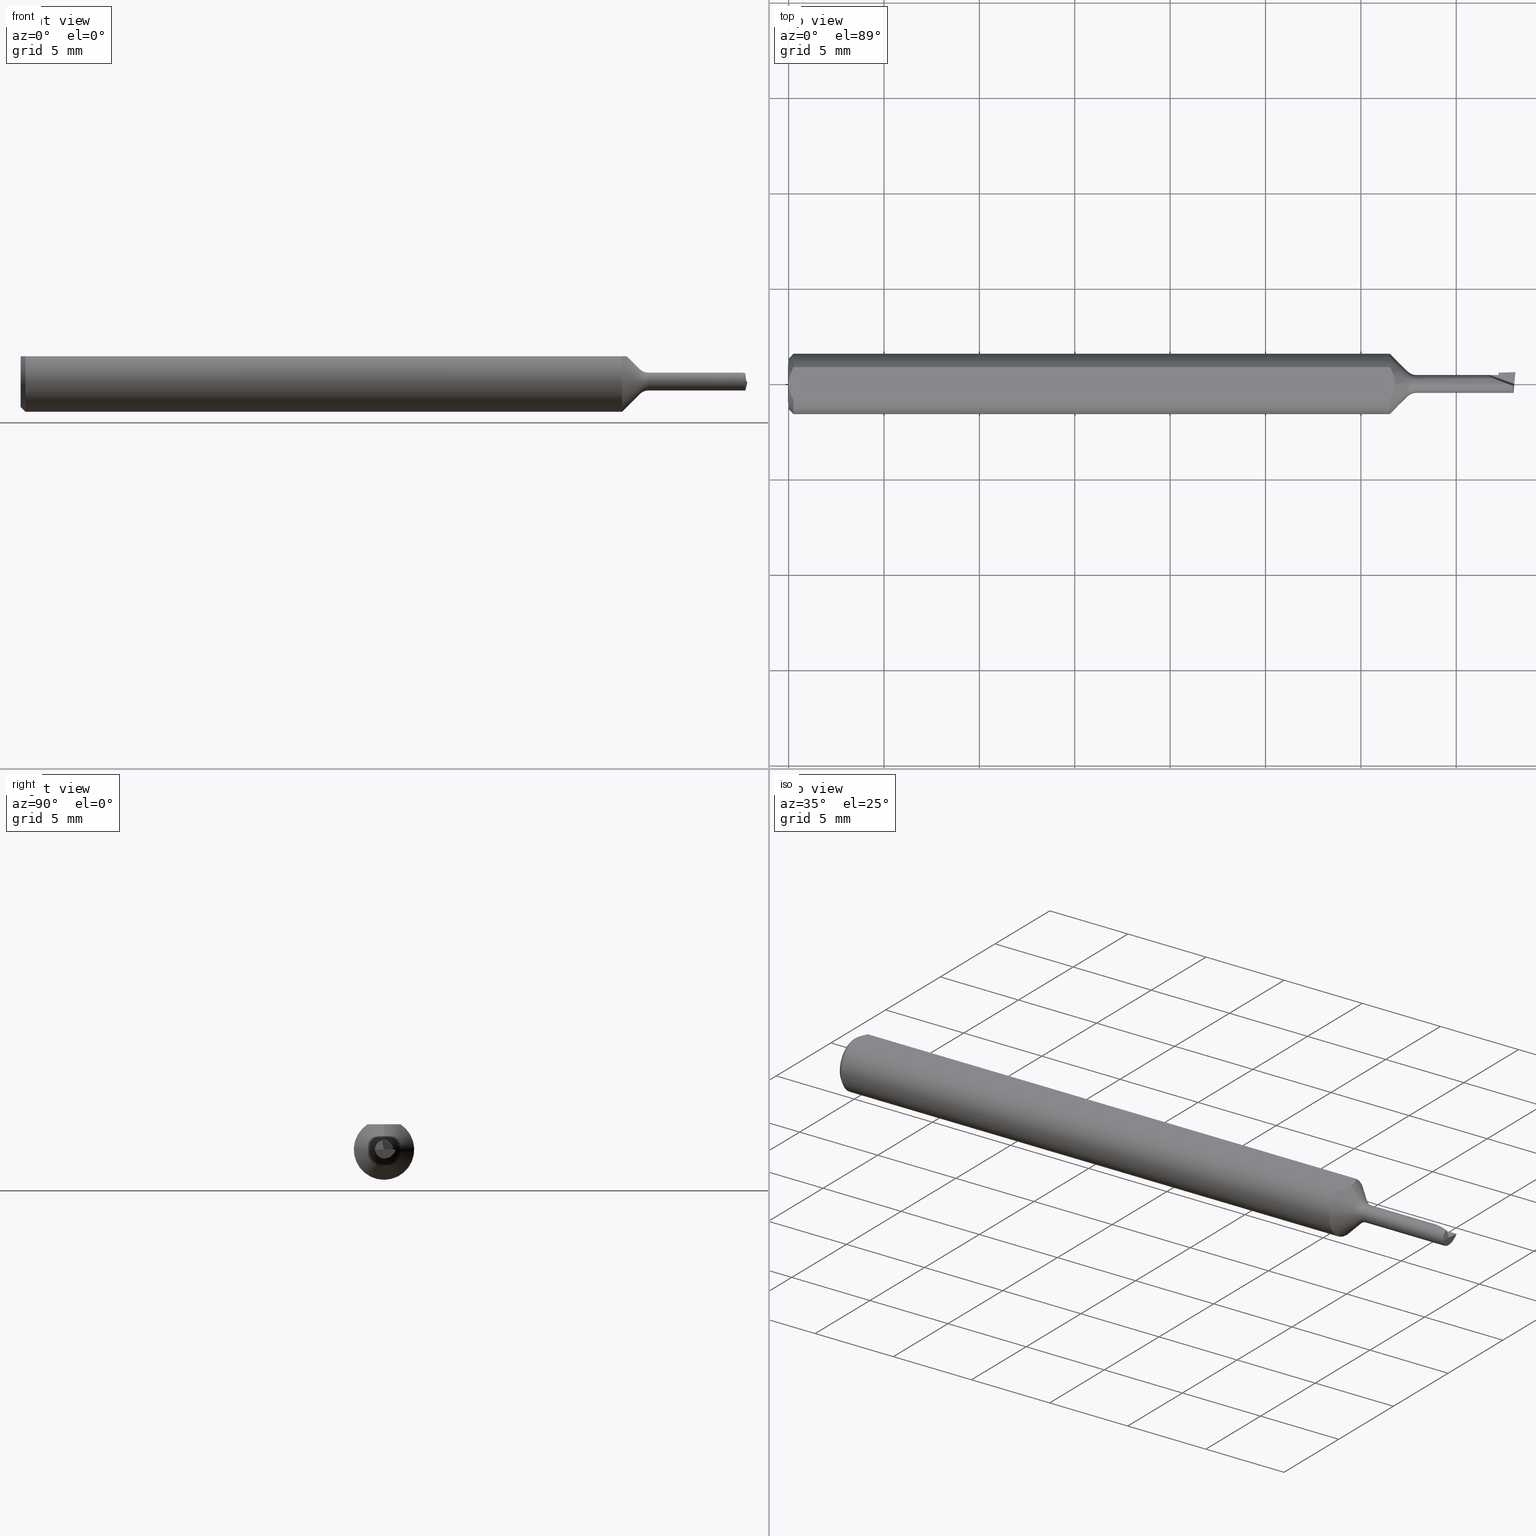
[diagram: canonical four-view strip — front | top / right | iso, engineering-drawing reading convention]
A machine part, canonical four-view strip (front | top / right | iso — engineering-drawing reading convention). The complete STEP part file that produces these views, byte-faithful:
ISO-10303-21;
HEADER;
FILE_DESCRIPTION (( 'STEP AP203' ),
    '1' );
FILE_NAME ('210049-MB045200.STEP',
    '2025-01-30T18:57:44',
    ( '' ),
    ( '' ),
    'SwSTEP 2.0',
    'SolidWorks 2024',
    '' );
FILE_SCHEMA (( 'CONFIG_CONTROL_DESIGN' ));
ENDSEC;

DATA;
#1 = ORIENTED_EDGE ( 'NONE', *, *, #316, .F. ) ;
#2 = DIRECTION ( 'NONE',  ( 0.000000000000000000, 0.000000000000000000, -1.000000000000000000 ) ) ;
#3 = B_SPLINE_CURVE_WITH_KNOTS ( 'NONE', 3,
 ( #346, #159, #496, #644, #546, #402 ),
 .UNSPECIFIED., .F., .F.,
 ( 4, 2, 4 ),
 ( 0.0009229516234078821539, 0.001371626545108044996, 0.001820301466808207621 ),
 .UNSPECIFIED. ) ;
#4 = VECTOR ( 'NONE', #440, 39.37007874015748143 ) ;
#5 = VERTEX_POINT ( 'NONE', #164 ) ;
#6 = CIRCLE ( 'NONE', #452, 0.01849999999999999908 ) ;
#7 = CARTESIAN_POINT ( 'NONE',  ( 0.000000000000000000, 0.000000000000000000, 0.000000000000000000 ) ) ;
#8 = CARTESIAN_POINT ( 'NONE',  ( 1.498722803693174566, 0.02118925606886698162, -0.006999999999999996676 ) ) ;
#9 = EDGE_CURVE ( 'NONE', #486, #575, #309, .T. ) ;
#10 = DIRECTION ( 'NONE',  ( 0.000000000000000000, 0.000000000000000000, 1.000000000000000000 ) ) ;
#11 = LINE ( 'NONE', #475, #447 ) ;
#12 = DIRECTION ( 'NONE',  ( 0.9993908270190960952, 0.03489949670248750080, -0.000000000000000000 ) ) ;
#13 = VECTOR ( 'NONE', #559, 39.37007874015748854 ) ;
#14 = LINE ( 'NONE', #371, #461 ) ;
#15 = AXIS2_PLACEMENT_3D ( 'NONE', #500, #550, #300 ) ;
#16 = VERTEX_POINT ( 'NONE', #394 ) ;
#17 = CARTESIAN_POINT ( 'NONE',  ( 1.465000000000000080, 0.02327777306778930702, -1.572938430745744944E-18 ) ) ;
#18 = CARTESIAN_POINT ( 'NONE',  ( 0.001055043921644571291, -0.01186408073217194367, 0.05235000000000002152 ) ) ;
#19 =( BOUNDED_CURVE ( )  B_SPLINE_CURVE ( 3, ( #320, #329, #315, #568 ),
 .UNSPECIFIED., .F., .F. ) 
 B_SPLINE_CURVE_WITH_KNOTS ( ( 4, 4 ),
 ( 5.466285219765468995, 5.728084607564618125 ),
 .UNSPECIFIED. ) 
 CURVE ( )  GEOMETRIC_REPRESENTATION_ITEM ( )  RATIONAL_B_SPLINE_CURVE ( ( 1.000000000000000000, 0.9942965742492069214, 0.9942965742492069214, 1.000000000000000000 ) ) 
 REPRESENTATION_ITEM ( '' )  );
#20 = CARTESIAN_POINT ( 'NONE',  ( 1.241150000000000198, -0.03386738844375220686, 0.05235000000000000070 ) ) ;
#21 = DIRECTION ( 'NONE',  ( -0.9864997997699066490, 0.08630754905045853742, 0.1391731009600517543 ) ) ;
#22 = EDGE_CURVE ( 'NONE', #16, #444, #281, .T. ) ;
#23 = PERSON_AND_ORGANIZATION_ROLE ( 'creator' ) ;
#24 = CARTESIAN_POINT ( 'NONE',  ( 1.295355339059327315, 2.265596578422605350E-18, -0.01850000000000001643 ) ) ;
#25 = CIRCLE ( 'NONE', #112, 0.02582233047033638193 ) ;
#26 = AXIS2_PLACEMENT_3D ( 'NONE', #406, #595, #55 ) ;
#27 = CARTESIAN_POINT ( 'NONE',  ( 1.491015288325890253, -0.002751962849509067850, 0.01834616788330073814 ) ) ;
#28 = DIRECTION ( 'NONE',  ( -1.000000000000000000, -0.000000000000000000, -0.000000000000000000 ) ) ;
#29 = EDGE_LOOP ( 'NONE', ( #190, #639, #449, #584 ) ) ;
#30 = EDGE_CURVE ( 'NONE', #339, #202, #154, .T. ) ;
#31 = CARTESIAN_POINT ( 'NONE',  ( 2.815371162439451627E-33, 0.01850000000000000602, -6.508939666095427711E-17 ) ) ;
#32 = EDGE_LOOP ( 'NONE', ( #375, #41, #441, #117 ) ) ;
#33 = CC_DESIGN_PERSON_AND_ORGANIZATION_ASSIGNMENT ( #450, #580, ( #615 ) ) ;
#34 = CARTESIAN_POINT ( 'NONE',  ( 1.560200597524541877, 0.004788152334396648772, -0.01786962778634774984 ) ) ;
#35 = ORIENTED_EDGE ( 'NONE', *, *, #240, .T. ) ;
#36 = AXIS2_PLACEMENT_3D ( 'NONE', #377, #630, #291 ) ;
#37 = PLANE ( 'NONE',  #169 ) ;
#38 = ORIENTED_EDGE ( 'NONE', *, *, #214, .T. ) ;
#39 = AXIS2_PLACEMENT_3D ( 'NONE', #561, #113, #466 ) ;
#40 = CARTESIAN_POINT ( 'NONE',  ( 1.465000000000000080, 0.01072789620067145060, -0.01627807821413169986 ) ) ;
#41 = ORIENTED_EDGE ( 'NONE', *, *, #269, .T. ) ;
#42 = ADVANCED_FACE ( 'NONE', ( #596 ), #464, .T. ) ;
#43 = DATE_TIME_ROLE ( 'creation_date' ) ;
#44 = CARTESIAN_POINT ( 'NONE',  ( 1.243992034642578348, 0.02863519109676606472, 0.05235000000000002152 ) ) ;
#45 = VERTEX_POINT ( 'NONE', #8 ) ;
#46 = APPLICATION_PROTOCOL_DEFINITION ( 'international standard', 'config_control_design', 1994, #641 ) ;
#47 = VECTOR ( 'NONE', #271, 39.37007874015748143 ) ;
#48 = AXIS2_PLACEMENT_3D ( 'NONE', #474, #609, #366 ) ;
#49 = DIRECTION ( 'NONE',  ( 0.000000000000000000, 0.000000000000000000, 1.000000000000000000 ) ) ;
#50 = VERTEX_POINT ( 'NONE', #74 ) ;
#51 = PERSON_AND_ORGANIZATION_ROLE ( 'classification_officer' ) ;
#52 = EDGE_CURVE ( 'NONE', #539, #483, #151, .T. ) ;
#53 = CARTESIAN_POINT ( 'NONE',  ( 1.495246590703220857, 2.265596578422604194E-18, -0.01850000000000000602 ) ) ;
#54 = ORIENTED_EDGE ( 'NONE', *, *, #547, .F. ) ;
#55 = DIRECTION ( 'NONE',  ( 0.000000000000000000, -1.224646799147353207E-16, 1.000000000000000000 ) ) ;
#56 = ORIENTED_EDGE ( 'NONE', *, *, #645, .F. ) ;
#57 = CYLINDRICAL_SURFACE ( 'NONE', #39, 0.01850000000000000602 ) ;
#58 = CIRCLE ( 'NONE', #448, 0.01850000000000001296 ) ;
#59 = ORIENTED_EDGE ( 'NONE', *, *, #557, .F. ) ;
#60 = APPROVAL_DATE_TIME ( #398, #237 ) ;
#61 = CARTESIAN_POINT ( 'NONE',  ( 1.483333815684383605, 0.000000000000000000, 0.01850000000000000602 ) ) ;
#62 = DIRECTION ( 'NONE',  ( -1.000000000000000000, -0.000000000000000000, -0.000000000000000000 ) ) ;
#63 = DATE_TIME_ROLE ( 'classification_date' ) ;
#64 = CARTESIAN_POINT ( 'NONE',  ( 1.241150000000000198, 0.000000000000000000, 0.000000000000000000 ) ) ;
#65 = CARTESIAN_POINT ( 'NONE',  ( 1.497591963102740786, 0.01621548884024824957, -0.01193127157655284563 ) ) ;
#66 = ORIENTED_EDGE ( 'NONE', *, *, #298, .T. ) ;
#67 = CARTESIAN_POINT ( 'NONE',  ( 1.453559267999332549, 0.01083704909609771970, 0.01850000000000004072 ) ) ;
#68 = VECTOR ( 'NONE', #397, 39.37007874015748143 ) ;
#69 = FACE_OUTER_BOUND ( 'NONE', #259, .T. ) ;
#70 = EDGE_LOOP ( 'NONE', ( #551, #537, #460, #86, #59, #490 ) ) ;
#71 = ADVANCED_FACE ( 'NONE', ( #367 ), #616, .T. ) ;
#72 = DIRECTION ( 'NONE',  ( -1.000000000000000000, -0.000000000000000000, -0.000000000000000000 ) ) ;
#73 = CC_DESIGN_APPROVAL ( #237, ( #622 ) ) ;
#74 = CARTESIAN_POINT ( 'NONE',  ( 1.241150000000000198, 0.03386738844375220686, 0.05235000000000000070 ) ) ;
#75 = VERTEX_POINT ( 'NONE', #225 ) ;
#76 = CARTESIAN_POINT ( 'NONE',  ( 1.465000000000000080, 0.004788152334396648772, -0.01786962778634774984 ) ) ;
#77 = ORIENTED_EDGE ( 'NONE', *, *, #81, .F. ) ;
#78 = PERSON_AND_ORGANIZATION ( #433, #84 ) ;
#79 = DIRECTION ( 'NONE',  ( 0.000000000000000000, 0.000000000000000000, 1.000000000000000000 ) ) ;
#80 = VERTEX_POINT ( 'NONE', #606 ) ;
#81 = EDGE_CURVE ( 'NONE', #575, #454, #322, .T. ) ;
#82 = VECTOR ( 'NONE', #357, 39.37007874015748143 ) ;
#83 = COORDINATED_UNIVERSAL_TIME_OFFSET ( 8, 0, .BEHIND. ) ;
#84 = ORGANIZATION ( 'UNSPECIFIED', 'UNSPECIFIED', '' ) ;
#85 = CARTESIAN_POINT ( 'NONE',  ( 1.494952902551172302, -0.004097954674002866546, 0.01804042038007480295 ) ) ;
#86 = ORIENTED_EDGE ( 'NONE', *, *, #214, .F. ) ;
#87 = FACE_OUTER_BOUND ( 'NONE', #497, .T. ) ;
#88 = EDGE_LOOP ( 'NONE', ( #111, #629, #332, #635, #127 ) ) ;
#89 = EDGE_CURVE ( 'NONE', #483, #539, #25, .T. ) ;
#90 = CARTESIAN_POINT ( 'NONE',  ( 1.498845433956495388, 0.02150713782118080994, -0.006327893575437196390 ) ) ;
#91 = EDGE_LOOP ( 'NONE', ( #347, #432 ) ) ;
#92 = AXIS2_PLACEMENT_3D ( 'NONE', #518, #418, #425 ) ;
#93 = EDGE_CURVE ( 'NONE', #444, #16, #302, .T. ) ;
#94 = LINE ( 'NONE', #294, #104 ) ;
#95 = ORIENTED_EDGE ( 'NONE', *, *, #115, .F. ) ;
#96 = PRODUCT_DEFINITION_FORMATION_WITH_SPECIFIED_SOURCE ( 'ANY', '', #615, .NOT_KNOWN. ) ;
#97 = PERSON_AND_ORGANIZATION ( #433, #84 ) ;
#98 = LINE ( 'NONE', #249, #141 ) ;
#99 = EDGE_LOOP ( 'NONE', ( #438, #358, #295, #355, #604 ) ) ;
#100 = CARTESIAN_POINT ( 'NONE',  ( 0.000000000000000000, 0.000000000000000000, 0.000000000000000000 ) ) ;
#101 = ORIENTED_EDGE ( 'NONE', *, *, #115, .T. ) ;
#102 = ADVANCED_FACE ( 'NONE', ( #522 ), #179, .F. ) ;
#103 = APPROVAL_ROLE ( '' ) ;
#104 = VECTOR ( 'NONE', #492, 39.37007874015748854 ) ;
#105 = LINE ( 'NONE', #305, #383 ) ;
#106 = VERTEX_POINT ( 'NONE', #610 ) ;
#107 = AXIS2_PLACEMENT_3D ( 'NONE', #381, #499, #528 ) ;
#108 = DIRECTION ( 'NONE',  ( -0.000000000000000000, 0.9659258262890682012, 0.2588190451025212946 ) ) ;
#109 = EDGE_LOOP ( 'NONE', ( #387, #35, #532 ) ) ;
#110 = CARTESIAN_POINT ( 'NONE',  ( 1.241150000000000198, -0.03386738844375220686, 0.05235000000000000070 ) ) ;
#111 = ORIENTED_EDGE ( 'NONE', *, *, #148, .T. ) ;
#112 = AXIS2_PLACEMENT_3D ( 'NONE', #477, #571, #131 ) ;
#113 = DIRECTION ( 'NONE',  ( -1.000000000000000000, -0.000000000000000000, -0.000000000000000000 ) ) ;
#114 = AXIS2_PLACEMENT_3D ( 'NONE', #212, #153, #207 ) ;
#115 = EDGE_CURVE ( 'NONE', #199, #365, #19, .T. ) ;
#116 = DIRECTION ( 'NONE',  ( 0.1396943646708924958, 0.000000000000000000, -0.9901946699913082295 ) ) ;
#117 = ORIENTED_EDGE ( 'NONE', *, *, #465, .F. ) ;
#118 = CARTESIAN_POINT ( 'NONE',  ( 1.465000000000000080, 0.000000000000000000, 0.000000000000000000 ) ) ;
#119 = LINE ( 'NONE', #65, #47 ) ;
#120 = ORIENTED_EDGE ( 'NONE', *, *, #619, .T. ) ;
#121 = LINE ( 'NONE', #310, #194 ) ;
#122 = CARTESIAN_POINT ( 'NONE',  ( -1.070637973615595603E-15, -0.005965286321711177862, 0.05235000000000002152 ) ) ;
#123 = ADVANCED_FACE ( 'NONE', ( #69 ), #363, .F. ) ;
#124 = DIRECTION ( 'NONE',  ( 0.000000000000000000, 0.000000000000000000, 1.000000000000000000 ) ) ;
#125 = CIRCLE ( 'NONE', #501, 0.02499999999999999098 ) ;
#126 = LINE ( 'NONE', #360, #533 ) ;
#127 = ORIENTED_EDGE ( 'NONE', *, *, #204, .F. ) ;
#128 = CC_DESIGN_DATE_AND_TIME_ASSIGNMENT ( #168, #63, ( #622 ) ) ;
#129 = CALENDAR_DATE ( 2025, 30, 1 ) ;
#130 = CC_DESIGN_APPROVAL ( #493, ( #623 ) ) ;
#131 = DIRECTION ( 'NONE',  ( 0.000000000000000000, 0.000000000000000000, 1.000000000000000000 ) ) ;
#132 = ORIENTED_EDGE ( 'NONE', *, *, #148, .F. ) ;
#133 = CALENDAR_DATE ( 2025, 30, 1 ) ;
#134 = EDGE_CURVE ( 'NONE', #539, #80, #11, .T. ) ;
#135 = CARTESIAN_POINT ( 'NONE',  ( 1.465000000000000080, 0.01850000000000000602, -6.508939666095427711E-17 ) ) ;
#136 = VERTEX_POINT ( 'NONE', #167 ) ;
#137 = APPLICATION_PROTOCOL_DEFINITION ( 'international standard', 'config_control_design', 1994, #251 ) ;
#138 = DIRECTION ( 'NONE',  ( -1.000000000000000000, -0.000000000000000000, -0.000000000000000000 ) ) ;
#139 = CLOSED_SHELL ( 'NONE', ( #510, #187, #565, #42, #422, #627, #197, #388, #489, #601, #637, #400, #370, #280, #233, #123, #102, #71, #288 ) ) ;
#140 = EDGE_LOOP ( 'NONE', ( #423, #132, #504, #56 ) ) ;
#141 = VECTOR ( 'NONE', #396, 39.37007874015748143 ) ;
#142 =( BOUNDED_CURVE ( )  B_SPLINE_CURVE ( 3, ( #53, #456, #598, #354 ),
 .UNSPECIFIED., .F., .F. ) 
 B_SPLINE_CURVE_WITH_KNOTS ( ( 4, 4 ),
 ( 5.728084607564618125, 7.298880934359528894 ),
 .UNSPECIFIED. ) 
 CURVE ( )  GEOMETRIC_REPRESENTATION_ITEM ( )  RATIONAL_B_SPLINE_CURVE ( ( 1.000000000000000000, 0.8047378541243617178, 0.8047378541243617178, 1.000000000000000000 ) ) 
 REPRESENTATION_ITEM ( '' )  );
#143 = COORDINATED_UNIVERSAL_TIME_OFFSET ( 8, 0, .BEHIND. ) ;
#144 = DIRECTION ( 'NONE',  ( 0.000000000000000000, 0.000000000000000000, -1.000000000000000000 ) ) ;
#145 = ORIENTED_EDGE ( 'NONE', *, *, #30, .T. ) ;
#146 = DIRECTION ( 'NONE',  ( 0.000000000000000000, 0.9659258262890682012, 0.2588190451025212391 ) ) ;
#147 = VERTEX_POINT ( 'NONE', #228 ) ;
#148 = EDGE_CURVE ( 'NONE', #5, #202, #126, .T. ) ;
#149 = FACE_OUTER_BOUND ( 'NONE', #70, .T. ) ;
#150 = ORIENTED_EDGE ( 'NONE', *, *, #328, .T. ) ;
#151 = CIRCLE ( 'NONE', #323, 0.02582233047033638193 ) ;
#152 = AXIS2_PLACEMENT_3D ( 'NONE', #531, #28, #198 ) ;
#153 = DIRECTION ( 'NONE',  ( -1.000000000000000000, -0.000000000000000000, -0.000000000000000000 ) ) ;
#154 = LINE ( 'NONE', #208, #68 ) ;
#155 = PERSON_AND_ORGANIZATION ( #433, #84 ) ;
#156 = PLANE ( 'NONE',  #15 ) ;
#157 = EDGE_CURVE ( 'NONE', #45, #75, #119, .T. ) ;
#158 = ORIENTED_EDGE ( 'NONE', *, *, #498, .T. ) ;
#159 = CARTESIAN_POINT ( 'NONE',  ( 0.007185421074056205608, 0.02868573718286560742, 0.05235000000000002152 ) ) ;
#160 = CARTESIAN_POINT ( 'NONE',  ( 1.465000000000000080, 0.02242357863109861044, -0.001830709982111567661 ) ) ;
#161 = FACE_OUTER_BOUND ( 'NONE', #545, .T. ) ;
#162 = VERTEX_POINT ( 'NONE', #76 ) ;
#163 = CARTESIAN_POINT ( 'NONE',  ( 0.000000000000000000, 0.000000000000000000, 0.05235000000000033377 ) ) ;
#164 = CARTESIAN_POINT ( 'NONE',  ( 1.446998957439701083, 0.01849999999999999908, -4.483286445232968331E-18 ) ) ;
#165 = EDGE_CURVE ( 'NONE', #202, #401, #14, .T. ) ;
#166 = FACE_OUTER_BOUND ( 'NONE', #582, .T. ) ;
#167 = CARTESIAN_POINT ( 'NONE',  ( 0.009999999999999890921, 0.03386738844375217911, 0.05235000000000001458 ) ) ;
#168 = DATE_AND_TIME ( #312, #274 ) ;
#169 = AXIS2_PLACEMENT_3D ( 'NONE', #34, #235, #146 ) ;
#170 = LINE ( 'NONE', #564, #427 ) ;
#171 = VECTOR ( 'NONE', #605, 39.37007874015748143 ) ;
#172 = DIRECTION ( 'NONE',  ( 0.000000000000000000, 0.000000000000000000, 1.000000000000000000 ) ) ;
#173 = EDGE_LOOP ( 'NONE', ( #566, #414, #408, #617 ) ) ;
#174 = LOCAL_TIME ( 10, 57, 44.00000000000000000, #373 ) ;
#175 = FACE_OUTER_BOUND ( 'NONE', #29, .T. ) ;
#176 = DIRECTION ( 'NONE',  ( -1.000000000000000000, -0.000000000000000000, -0.000000000000000000 ) ) ;
#177 = EDGE_CURVE ( 'NONE', #444, #633, #560, .T. ) ;
#178 = DIRECTION ( 'NONE',  ( -1.000000000000000000, -0.000000000000000000, -0.000000000000000000 ) ) ;
#179 = PLANE ( 'NONE',  #471 ) ;
#180 = CARTESIAN_POINT ( 'NONE',  ( 1.277677669529663662, 3.162323435702261239E-18, -0.02582233047033637499 ) ) ;
#181 = DIRECTION ( 'NONE',  ( 0.000000000000000000, -0.7073221891495888869, -0.7068913075831623205 ) ) ;
#182 = ORIENTED_EDGE ( 'NONE', *, *, #222, .T. ) ;
#183 = APPROVAL_STATUS ( 'not_yet_approved' ) ;
#184 = LOCAL_TIME ( 10, 57, 44.00000000000000000, #304 ) ;
#185 = DIRECTION ( 'NONE',  ( 0.000000000000000000, -1.000000000000000000, 0.000000000000000000 ) ) ;
#186 = ORIENTED_EDGE ( 'NONE', *, *, #165, .T. ) ;
#187 = ADVANCED_FACE ( 'NONE', ( #87 ), #523, .T. ) ;
#188 =( NAMED_UNIT ( * ) PLANE_ANGLE_UNIT ( ) SI_UNIT ( $, .RADIAN. ) );
#189 = CARTESIAN_POINT ( 'NONE',  ( 1.500000000000000222, 0.02450000000000000094, -1.067128122525102820E-18 ) ) ;
#190 = ORIENTED_EDGE ( 'NONE', *, *, #22, .F. ) ;
#191 = LINE ( 'NONE', #31, #4 ) ;
#192 = AXIS2_PLACEMENT_3D ( 'NONE', #238, #144, #586 ) ;
#193 = ORIENTED_EDGE ( 'NONE', *, *, #540, .T. ) ;
#194 = VECTOR ( 'NONE', #567, 39.37007874015748143 ) ;
#195 = CARTESIAN_POINT ( 'NONE',  ( 1.496237987468385322, -0.01849999999999996439, 2.732599657287118718E-16 ) ) ;
#196 = VERTEX_POINT ( 'NONE', #24 ) ;
#197 = ADVANCED_FACE ( 'NONE', ( #334 ), #588, .F. ) ;
#198 = DIRECTION ( 'NONE',  ( 0.000000000000000000, 0.000000000000000000, 1.000000000000000000 ) ) ;
#199 = VERTEX_POINT ( 'NONE', #286 ) ;
#200 = CC_DESIGN_PERSON_AND_ORGANIZATION_ASSIGNMENT ( #577, #216, ( #96 ) ) ;
#201 = CARTESIAN_POINT ( 'NONE',  ( 1.251150000000000206, 0.005920815533600993531, 0.05235000000000002152 ) ) ;
#202 = VERTEX_POINT ( 'NONE', #429 ) ;
#203 =( CONVERSION_BASED_UNIT ( 'INCH', #299 ) LENGTH_UNIT ( ) NAMED_UNIT ( #380 ) );
#204 = EDGE_CURVE ( 'NONE', #5, #245, #191, .T. ) ;
#205 = FACE_OUTER_BOUND ( 'NONE', #554, .T. ) ;
#206 = DIRECTION ( 'NONE',  ( 0.000000000000000000, 0.000000000000000000, -1.000000000000000000 ) ) ;
#207 = DIRECTION ( 'NONE',  ( 0.000000000000000000, 0.000000000000000000, 1.000000000000000000 ) ) ;
#208 = CARTESIAN_POINT ( 'NONE',  ( 1.497856527743614885, 5.157748590581906026E-34, -4.482061838879143203E-18 ) ) ;
#209 = MANIFOLD_SOLID_BREP ( 'Cut-Extrude8', #139 ) ;
#210 = CARTESIAN_POINT ( 'NONE',  ( 1.295355339059327315, 0.000000000000000000, 0.000000000000000000 ) ) ;
#211 = ORIENTED_EDGE ( 'NONE', *, *, #376, .T. ) ;
#212 = CARTESIAN_POINT ( 'NONE',  ( 1.295355339059327315, 0.000000000000000000, 0.000000000000000000 ) ) ;
#213 = ORIENTED_EDGE ( 'NONE', *, *, #473, .T. ) ;
#214 = EDGE_CURVE ( 'NONE', #589, #633, #279, .T. ) ;
#215 = APPROVAL_PERSON_ORGANIZATION ( #78, #468, #636 ) ;
#216 = PERSON_AND_ORGANIZATION_ROLE ( 'design_supplier' ) ;
#217 = FACE_OUTER_BOUND ( 'NONE', #173, .T. ) ;
#218 = CARTESIAN_POINT ( 'NONE',  ( 1.491155917282976695, 0.03518992960932577213, 0.06931876481191029393 ) ) ;
#219 = CARTESIAN_POINT ( 'NONE',  ( 1.251150000000000206, -1.477725056715825224E-21, 0.05235000000000001458 ) ) ;
#220 = DIRECTION ( 'NONE',  ( 0.9396926207859126468, -0.3420201433256568335, -0.000000000000000000 ) ) ;
#221 = VECTOR ( 'NONE', #435, 39.37007874015747433 ) ;
#222 = EDGE_CURVE ( 'NONE', #483, #530, #125, .T. ) ;
#223 = CARTESIAN_POINT ( 'NONE',  ( 0.000000000000000000, 0.000000000000000000, -0.05235000000000033377 ) ) ;
#224 = CIRCLE ( 'NONE', #26, 0.02499999999999999098 ) ;
#225 = CARTESIAN_POINT ( 'NONE',  ( 1.496688055231696124, 0.01223983799721654366, -0.01587295463074458318 ) ) ;
#226 = DIRECTION ( 'NONE',  ( 0.000000000000000000, 0.000000000000000000, 1.000000000000000000 ) ) ;
#227 = DIRECTION ( 'NONE',  ( 0.000000000000000000, 0.000000000000000000, 1.000000000000000000 ) ) ;
#228 = CARTESIAN_POINT ( 'NONE',  ( 0.009999999999999887451, 0.000000000000000000, -0.06235000000000000264 ) ) ;
#229 =( NAMED_UNIT ( * ) SI_UNIT ( $, .STERADIAN. ) SOLID_ANGLE_UNIT ( ) );
#230 = AXIS2_PLACEMENT_3D ( 'NONE', #389, #625, #482 ) ;
#231 = VECTOR ( 'NONE', #459, 39.37007874015748143 ) ;
#232 = DIRECTION ( 'NONE',  ( 0.1201445221440180927, 0.9589290576775757469, 0.2569442666034444378 ) ) ;
#233 = ADVANCED_FACE ( 'NONE', ( #583 ), #374, .F. ) ;
#234 = CARTESIAN_POINT ( 'NONE',  ( 1.487126106453287244, -0.001380280959563398363, 0.01850000000000000949 ) ) ;
#235 = DIRECTION ( 'NONE',  ( 0.000000000000000000, 0.2588190451025212391, -0.9659258262890682012 ) ) ;
#236 = ORIENTED_EDGE ( 'NONE', *, *, #576, .T. ) ;
#237 = APPROVAL ( #356, 'UNSPECIFIED' ) ;
#238 = CARTESIAN_POINT ( 'NONE',  ( 1.500000000000000222, 0.06235000000000000264, 0.05235000000000001458 ) ) ;
#239 = ORIENTED_EDGE ( 'NONE', *, *, #585, .F. ) ;
#240 = EDGE_CURVE ( 'NONE', #106, #401, #317, .T. ) ;
#241 = PLANE ( 'NONE',  #192 ) ;
#242 = EDGE_LOOP ( 'NONE', ( #101, #390, #385, #301, #236, #569, #378, #247 ) ) ;
#243 = VECTOR ( 'NONE', #72, 39.37007874015748143 ) ;
#244 = LINE ( 'NONE', #90, #221 ) ;
#245 = VERTEX_POINT ( 'NONE', #135 ) ;
#246 = CARTESIAN_POINT ( 'NONE',  ( 1.277677669529663662, 0.000000000000000000, 0.02582233047033637499 ) ) ;
#247 = ORIENTED_EDGE ( 'NONE', *, *, #269, .F. ) ;
#248 = CALENDAR_DATE ( 2025, 30, 1 ) ;
#249 = CARTESIAN_POINT ( 'NONE',  ( 1.277677669529663662, 0.000000000000000000, 0.02582233047033638193 ) ) ;
#250 = ORIENTED_EDGE ( 'NONE', *, *, #134, .F. ) ;
#251 = APPLICATION_CONTEXT ( 'configuration controlled 3d designs of mechanical parts and assemblies' ) ;
#252 = VECTOR ( 'NONE', #232, 39.37007874015748854 ) ;
#253 = AXIS2_PLACEMENT_3D ( 'NONE', #628, #342, #79 ) ;
#254 = DIRECTION ( 'NONE',  ( 0.000000000000000000, 0.000000000000000000, -1.000000000000000000 ) ) ;
#255 = CARTESIAN_POINT ( 'NONE',  ( 1.246488788636946898, 0.02320328458619740422, 0.05235000000000002152 ) ) ;
#256 = EDGE_LOOP ( 'NONE', ( #213, #349, #265, #556 ) ) ;
#257 = CALENDAR_DATE ( 2025, 30, 1 ) ;
#258 = DIRECTION ( 'NONE',  ( 0.000000000000000000, 1.000000000000000000, 1.150753554054429375E-16 ) ) ;
#259 = EDGE_LOOP ( 'NONE', ( #643, #527, #494, #77 ) ) ;
#260 = CARTESIAN_POINT ( 'NONE',  ( 1.559665859629950191, 0.01524471709213553669, -0.01506779970390787100 ) ) ;
#261 = EDGE_CURVE ( 'NONE', #147, #136, #618, .T. ) ;
#262 = ORIENTED_EDGE ( 'NONE', *, *, #451, .F. ) ;
#263 = AXIS2_PLACEMENT_3D ( 'NONE', #592, #297, #206 ) ;
#264 = LINE ( 'NONE', #223, #590 ) ;
#265 = ORIENTED_EDGE ( 'NONE', *, *, #607, .F. ) ;
#266 = CARTESIAN_POINT ( 'NONE',  ( 0.000000000000000000, 0.000000000000000000, 0.01850000000000000602 ) ) ;
#267 = DIRECTION ( 'NONE',  ( 0.1396943646708782849, 0.000000000000000000, 0.9901946699913101169 ) ) ;
#268 = PERSON_AND_ORGANIZATION ( #433, #84 ) ;
#269 = EDGE_CURVE ( 'NONE', #199, #162, #487, .T. ) ;
#270 = CARTESIAN_POINT ( 'NONE',  ( 1.295355339059327315, 0.000000000000000000, 0.01850000000000001296 ) ) ;
#271 = DIRECTION ( 'NONE',  ( -0.1593925713349118589, -0.7010550863643484343, -0.6950653020299035756 ) ) ;
#272 = AXIS2_PLACEMENT_3D ( 'NONE', #64, #521, #10 ) ;
#273 = CARTESIAN_POINT ( 'NONE',  ( 0.000000000000000000, 0.000000000000000000, 0.05235000000000033377 ) ) ;
#274 = LOCAL_TIME ( 10, 57, 44.00000000000000000, #505 ) ;
#275 = DIRECTION ( 'NONE',  ( -0.1550261498412155714, -0.2183092626835797800, 0.9634873941531153507 ) ) ;
#276 = B_SPLINE_CURVE_WITH_KNOTS ( 'NONE', 3,
 ( #552, #44, #255, #634, #201, #392 ),
 .UNSPECIFIED., .F., .F.,
 ( 4, 2, 4 ),
 ( 0.002018861167849298529, 0.002467762199066077071, 0.002916663230282855179 ),
 .UNSPECIFIED. ) ;
#277 = DIRECTION ( 'NONE',  ( 0.9864997997699033183, -0.08630754905047478831, 0.1391731009600657154 ) ) ;
#278 = MECHANICAL_CONTEXT ( 'NONE', #641, 'mechanical' ) ;
#279 = LINE ( 'NONE', #578, #405 ) ;
#280 = ADVANCED_FACE ( 'NONE', ( #384 ), #37, .T. ) ;
#281 = CIRCLE ( 'NONE', #263, 0.05235000000000033377 ) ;
#282 = CIRCLE ( 'NONE', #152, 0.01850000000000001296 ) ;
#283 = CARTESIAN_POINT ( 'NONE',  ( 1.460024366919236094, 0.02310402013190050036, -1.572938430745744944E-18 ) ) ;
#284 = ORIENTED_EDGE ( 'NONE', *, *, #540, .F. ) ;
#285 = CARTESIAN_POINT ( 'NONE',  ( 0.01000000000000840841, -0.03386738844395137393, 0.05235000000000001458 ) ) ;
#286 = CARTESIAN_POINT ( 'NONE',  ( 1.495754431199804557, 0.004788152334396648772, -0.01786962778634774984 ) ) ;
#287 = ORIENTED_EDGE ( 'NONE', *, *, #376, .F. ) ;
#288 = ADVANCED_FACE ( 'NONE', ( #149 ), #241, .F. ) ;
#289 = CARTESIAN_POINT ( 'NONE',  ( 1.494465960141844851, -0.01288082332125570564, 0.01604535613734157928 ) ) ;
#290 = ORIENTED_EDGE ( 'NONE', *, *, #645, .T. ) ;
#291 = DIRECTION ( 'NONE',  ( 0.000000000000000000, 0.000000000000000000, -1.000000000000000000 ) ) ;
#292 = ORIENTED_EDGE ( 'NONE', *, *, #411, .F. ) ;
#293 = VECTOR ( 'NONE', #12, 39.37007874015748854 ) ;
#294 = CARTESIAN_POINT ( 'NONE',  ( 0.7984117945685827999, 3.886970232290855934E-33, -3.377760788655366709E-17 ) ) ;
#295 = ORIENTED_EDGE ( 'NONE', *, *, #442, .F. ) ;
#296 = CARTESIAN_POINT ( 'NONE',  ( 1.496237987468385322, -0.01849999999999996439, 2.732599657287118718E-16 ) ) ;
#297 = DIRECTION ( 'NONE',  ( -1.000000000000000000, -0.000000000000000000, -0.000000000000000000 ) ) ;
#298 = EDGE_CURVE ( 'NONE', #633, #147, #511, .T. ) ;
#299 = LENGTH_MEASURE_WITH_UNIT ( LENGTH_MEASURE( 0.02539999999999999897 ), #624 );
#300 = DIRECTION ( 'NONE',  ( 0.9396926207859126468, -0.3420201433256567780, 0.000000000000000000 ) ) ;
#301 = ORIENTED_EDGE ( 'NONE', *, *, #619, .F. ) ;
#302 = CIRCLE ( 'NONE', #92, 0.05235000000000033377 ) ;
#303 = AXIS2_PLACEMENT_3D ( 'NONE', #100, #506, #2 ) ;
#304 = COORDINATED_UNIVERSAL_TIME_OFFSET ( 8, 0, .BEHIND. ) ;
#305 = CARTESIAN_POINT ( 'NONE',  ( 1.465000000000000080, 0.02204888731940269492, -0.01324462778634774400 ) ) ;
#306 = ORIENTED_EDGE ( 'NONE', *, *, #430, .F. ) ;
#307 = EDGE_CURVE ( 'NONE', #199, #75, #340, .T. ) ;
#308 = DIRECTION ( 'NONE',  ( 4.188400406518391045E-17, 1.150753554054429375E-16, -1.000000000000000000 ) ) ;
#309 = LINE ( 'NONE', #160, #13 ) ;
#310 = CARTESIAN_POINT ( 'NONE',  ( 0.000000000000000000, 0.03386738844375220686, 0.05235000000000000070 ) ) ;
#311 = ORIENTED_EDGE ( 'NONE', *, *, #134, .T. ) ;
#312 = CALENDAR_DATE ( 2025, 30, 1 ) ;
#313 = AXIS2_PLACEMENT_3D ( 'NONE', #321, #514, #420 ) ;
#314 = DIRECTION ( 'NONE',  ( -1.000000000000000000, -0.000000000000000000, -0.000000000000000000 ) ) ;
#315 = CARTESIAN_POINT ( 'NONE',  ( 1.495388239854692269, 0.001619057209963974077, -0.01850000000000000255 ) ) ;
#316 = EDGE_CURVE ( 'NONE', #339, #45, #244, .T. ) ;
#317 =( BOUNDED_CURVE ( )  B_SPLINE_CURVE ( 3, ( #85, #289, #479, #195 ),
 .UNSPECIFIED., .F., .F. ) 
 B_SPLINE_CURVE_WITH_KNOTS ( ( 4, 4 ),
 ( 5.951448363857583246, 7.298880934359464945 ),
 .UNSPECIFIED. ) 
 CURVE ( )  GEOMETRIC_REPRESENTATION_ITEM ( )  RATIONAL_B_SPLINE_CURVE ( ( 1.000000000000000000, 0.8543389983611022753, 0.8543389983611022753, 1.000000000000000000 ) ) 
 REPRESENTATION_ITEM ( '' )  );
#318 = ADVANCED_BREP_SHAPE_REPRESENTATION ( '210049-MB045200', ( #209, #107 ), #574 ) ;
#319 = CARTESIAN_POINT ( 'NONE',  ( 0.000000000000000000, 2.265596578422604194E-18, -0.01850000000000000602 ) ) ;
#320 = CARTESIAN_POINT ( 'NONE',  ( 1.495754431199804557, 0.004788152334396648772, -0.01786962778634774984 ) ) ;
#321 = CARTESIAN_POINT ( 'NONE',  ( 0.000000000000000000, 0.000000000000000000, 0.000000000000000000 ) ) ;
#322 = LINE ( 'NONE', #369, #572 ) ;
#323 = AXIS2_PLACEMENT_3D ( 'NONE', #413, #176, #172 ) ;
#324 = CARTESIAN_POINT ( 'NONE',  ( 1.483333815684383605, 0.000000000000000000, 0.01850000000000000602 ) ) ;
#325 = DIRECTION ( 'NONE',  ( 0.02467767077832642292, -0.7066760308408334135, 0.7071067811865490160 ) ) ;
#326 = EDGE_LOOP ( 'NONE', ( #239, #631, #594, #290, #120, #306 ) ) ;
#327 = APPROVAL_PERSON_ORGANIZATION ( #268, #237, #103 ) ;
#328 = EDGE_CURVE ( 'NONE', #530, #196, #282, .T. ) ;
#329 = CARTESIAN_POINT ( 'NONE',  ( 1.495558491035186899, 0.003224263161052952874, -0.01828867062739698499 ) ) ;
#330 = PERSON_AND_ORGANIZATION ( #433, #84 ) ;
#331 = DIRECTION ( 'NONE',  ( 1.000000000000000000, 0.000000000000000000, 0.000000000000000000 ) ) ;
#332 = ORIENTED_EDGE ( 'NONE', *, *, #473, .F. ) ;
#333 = DIRECTION ( 'NONE',  ( 1.000000000000000000, 0.000000000000000000, 0.000000000000000000 ) ) ;
#334 = FACE_OUTER_BOUND ( 'NONE', #99, .T. ) ;
#335 = ORIENTED_EDGE ( 'NONE', *, *, #89, .F. ) ;
#336 = EDGE_CURVE ( 'NONE', #80, #589, #416, .T. ) ;
#337 = CARTESIAN_POINT ( 'NONE',  ( 1.494952902551172302, -0.004097954674002866546, 0.01804042038007480295 ) ) ;
#338 = DIRECTION ( 'NONE',  ( 0.03162968562512429027, -0.9057556888204039147, 0.4226182617407007736 ) ) ;
#339 = VERTEX_POINT ( 'NONE', #189 ) ;
#340 = LINE ( 'NONE', #541, #252 ) ;
#341 = ORIENTED_EDGE ( 'NONE', *, *, #261, .F. ) ;
#342 = DIRECTION ( 'NONE',  ( -1.000000000000000000, -0.000000000000000000, -0.000000000000000000 ) ) ;
#343 = AXIS2_PLACEMENT_3D ( 'NONE', #431, #331, #538 ) ;
#344 = ORIENTED_EDGE ( 'NONE', *, *, #391, .F. ) ;
#345 = EDGE_CURVE ( 'NONE', #245, #486, #443, .T. ) ;
#346 = CARTESIAN_POINT ( 'NONE',  ( 0.009999999999999890921, 0.03386738844375217911, 0.05235000000000001458 ) ) ;
#347 = ORIENTED_EDGE ( 'NONE', *, *, #93, .T. ) ;
#348 = CC_DESIGN_PERSON_AND_ORGANIZATION_ASSIGNMENT ( #155, #549, ( #96 ) ) ;
#349 = ORIENTED_EDGE ( 'NONE', *, *, #316, .T. ) ;
#350 = SHAPE_DEFINITION_REPRESENTATION ( #379, #318 ) ;
#351 = DIRECTION ( 'NONE',  ( -1.000000000000000000, -0.000000000000000000, -0.000000000000000000 ) ) ;
#352 = ORIENTED_EDGE ( 'NONE', *, *, #307, .T. ) ;
#353 = EDGE_CURVE ( 'NONE', #50, #436, #276, .T. ) ;
#354 = CARTESIAN_POINT ( 'NONE',  ( 1.496237987468385322, -0.01849999999999996439, 2.732599657287118718E-16 ) ) ;
#355 = ORIENTED_EDGE ( 'NONE', *, *, #613, .F. ) ;
#356 = APPROVAL_STATUS ( 'not_yet_approved' ) ;
#357 = DIRECTION ( 'NONE',  ( -0.000000000000000000, 1.000000000000000000, 1.150753554054429375E-16 ) ) ;
#358 = ORIENTED_EDGE ( 'NONE', *, *, #81, .T. ) ;
#359 = CARTESIAN_POINT ( 'NONE',  ( 1.460138284237282980, 0.01984185495899845955, -0.006999999999999996676 ) ) ;
#360 = CARTESIAN_POINT ( 'NONE',  ( 1.405776579097274936, 0.03350371870230225285, -4.483286445232968331E-18 ) ) ;
#361 = AXIS2_PLACEMENT_3D ( 'NONE', #218, #277, #116 ) ;
#362 = CONICAL_SURFACE ( 'NONE', #303, 0.05235000000000033377, 0.7853981633974376209 ) ;
#363 = PLANE ( 'NONE',  #543 ) ;
#364 = LOCAL_TIME ( 10, 57, 44.00000000000000000, #143 ) ;
#365 = VERTEX_POINT ( 'NONE', #591 ) ;
#366 = DIRECTION ( 'NONE',  ( 0.000000000000000000, 0.000000000000000000, 1.000000000000000000 ) ) ;
#367 = FACE_OUTER_BOUND ( 'NONE', #109, .T. ) ;
#368 = CARTESIAN_POINT ( 'NONE',  ( 1.446998957439701083, 0.01849999999999999908, -4.483286445232968331E-18 ) ) ;
#369 = CARTESIAN_POINT ( 'NONE',  ( 1.465000000000000080, 0.02275535369517672074, -0.004257947521761099377 ) ) ;
#370 = ADVANCED_FACE ( 'NONE', ( #642 ), #453, .F. ) ;
#371 = CARTESIAN_POINT ( 'NONE',  ( 1.500296196177055563, 0.02788553779562383261, 3.414809992080329023E-16 ) ) ;
#372 = CC_DESIGN_PERSON_AND_ORGANIZATION_ASSIGNMENT ( #503, #51, ( #622 ) ) ;
#373 = COORDINATED_UNIVERSAL_TIME_OFFSET ( 8, 0, .BEHIND. ) ;
#374 = PLANE ( 'NONE',  #415 ) ;
#375 = ORIENTED_EDGE ( 'NONE', *, *, #307, .F. ) ;
#376 = EDGE_CURVE ( 'NONE', #483, #436, #98, .T. ) ;
#377 = CARTESIAN_POINT ( 'NONE',  ( 1.465000000000000080, 0.01849999999999999908, 0.000000000000000000 ) ) ;
#378 = ORIENTED_EDGE ( 'NONE', *, *, #613, .T. ) ;
#379 = PRODUCT_DEFINITION_SHAPE ( 'NONE', 'NONE',  #623 ) ;
#380 = DIMENSIONAL_EXPONENTS ( 1.000000000000000000, 0.000000000000000000, 0.000000000000000000, 0.000000000000000000, 0.000000000000000000, 0.000000000000000000, 0.000000000000000000 ) ;
#381 = CARTESIAN_POINT ( 'NONE',  ( 0.000000000000000000, 0.000000000000000000, 0.000000000000000000 ) ) ;
#382 = AXIS2_PLACEMENT_3D ( 'NONE', #525, #62, #573 ) ;
#383 = VECTOR ( 'NONE', #108, 39.37007874015747433 ) ;
#384 = FACE_OUTER_BOUND ( 'NONE', #32, .T. ) ;
#385 = ORIENTED_EDGE ( 'NONE', *, *, #328, .F. ) ;
#386 = CARTESIAN_POINT ( 'NONE',  ( 1.560200597524541877, 0.004788152334396648772, -0.01786962778634774984 ) ) ;
#387 = ORIENTED_EDGE ( 'NONE', *, *, #519, .T. ) ;
#388 = ADVANCED_FACE ( 'NONE', ( #205 ), #563, .F. ) ;
#389 = CARTESIAN_POINT ( 'NONE',  ( 0.009999999999999887451, 0.000000000000000000, 0.000000000000000000 ) ) ;
#390 = ORIENTED_EDGE ( 'NONE', *, *, #585, .T. ) ;
#391 = EDGE_CURVE ( 'NONE', #539, #196, #224, .T. ) ;
#392 = CARTESIAN_POINT ( 'NONE',  ( 1.251150000000000206, -1.477725056715825224E-21, 0.05235000000000001458 ) ) ;
#393 = TOROIDAL_SURFACE ( 'NONE', #480, 0.04350000000000000394, 0.02499999999999999098 ) ;
#394 = CARTESIAN_POINT ( 'NONE',  ( 0.000000000000000000, 0.000000000000000000, -0.05235000000000033377 ) ) ;
#395 = DATE_AND_TIME ( #248, #174 ) ;
#396 = DIRECTION ( 'NONE',  ( -0.7071067811865459074, 0.000000000000000000, 0.7071067811865491270 ) ) ;
#397 = DIRECTION ( 'NONE',  ( -0.08715574274766034468, -0.9961946980917453232, -1.182878904194726503E-16 ) ) ;
#398 = DATE_AND_TIME ( #257, #184 ) ;
#399 = CARTESIAN_POINT ( 'NONE',  ( 1.465000000000000080, 0.01849999999999999908, -3.729330705459841584E-18 ) ) ;
#400 = ADVANCED_FACE ( 'NONE', ( #161 ), #362, .T. ) ;
#401 = VERTEX_POINT ( 'NONE', #296 ) ;
#402 = CARTESIAN_POINT ( 'NONE',  ( 0.000000000000000000, 0.000000000000000000, 0.05235000000000033377 ) ) ;
#403 = ORIENTED_EDGE ( 'NONE', *, *, #353, .T. ) ;
#404 = PRODUCT_RELATED_PRODUCT_CATEGORY ( 'detail', '', ( #615 ) ) ;
#405 = VECTOR ( 'NONE', #437, 39.37007874015748143 ) ;
#406 = CARTESIAN_POINT ( 'NONE',  ( 1.295355339059327315, 5.327213576290986981E-18, -0.04350000000000000394 ) ) ;
#407 = CC_DESIGN_APPROVAL ( #468, ( #96 ) ) ;
#408 = ORIENTED_EDGE ( 'NONE', *, *, #430, .T. ) ;
#409 = CARTESIAN_POINT ( 'NONE',  ( 1.465000000000000080, 0.02001162981448263017, -0.006999999999999996676 ) ) ;
#410 = CARTESIAN_POINT ( 'NONE',  ( 1.495443673491787084, 0.02831007852008726039, -0.03465938240595495962 ) ) ;
#411 = EDGE_CURVE ( 'NONE', #136, #444, #3, .T. ) ;
#412 = CARTESIAN_POINT ( 'NONE',  ( 1.244001488371463182, -0.02861778674340263035, 0.05235000000000002152 ) ) ;
#413 = CARTESIAN_POINT ( 'NONE',  ( 1.277677669529663662, 0.000000000000000000, 0.000000000000000000 ) ) ;
#414 = ORIENTED_EDGE ( 'NONE', *, *, #391, .T. ) ;
#415 = AXIS2_PLACEMENT_3D ( 'NONE', #283, #338, #536 ) ;
#416 = CIRCLE ( 'NONE', #253, 0.06235000000000000264 ) ;
#417 = CARTESIAN_POINT ( 'NONE',  ( 1.295355339059327315, 0.000000000000000000, 0.000000000000000000 ) ) ;
#418 = DIRECTION ( 'NONE',  ( -1.000000000000000000, -0.000000000000000000, -0.000000000000000000 ) ) ;
#419 = LOCAL_TIME ( 10, 57, 44.00000000000000000, #83 ) ;
#420 = DIRECTION ( 'NONE',  ( 0.000000000000000000, 0.000000000000000000, -1.000000000000000000 ) ) ;
#421 = CARTESIAN_POINT ( 'NONE',  ( 0.007163450771416182694, -0.02864528976632487248, 0.05235000000000001458 ) ) ;
#422 = ADVANCED_FACE ( 'NONE', ( #638 ), #156, .F. ) ;
#423 = ORIENTED_EDGE ( 'NONE', *, *, #519, .F. ) ;
#424 = FACE_OUTER_BOUND ( 'NONE', #488, .T. ) ;
#425 = DIRECTION ( 'NONE',  ( 0.000000000000000000, 0.000000000000000000, -1.000000000000000000 ) ) ;
#426 = VECTOR ( 'NONE', #485, 39.37007874015748143 ) ;
#427 = VECTOR ( 'NONE', #275, 39.37007874015748143 ) ;
#428 = APPROVAL_DATE_TIME ( #620, #493 ) ;
#429 = CARTESIAN_POINT ( 'NONE',  ( 1.497855625440970062, -1.031336641983672081E-05, 2.387862265685893356E-16 ) ) ;
#430 = EDGE_CURVE ( 'NONE', #196, #530, #58, .T. ) ;
#431 = CARTESIAN_POINT ( 'NONE',  ( 0.009999999999999887451, 0.000000000000000000, 0.000000000000000000 ) ) ;
#432 = ORIENTED_EDGE ( 'NONE', *, *, #22, .T. ) ;
#433 = PERSON ( 'UNSPECIFIED', 'UNSPECIFIED', 'UNSPECIFIED', ('UNSPECIFIED'), ('UNSPECIFIED'), ('UNSPECIFIED') ) ;
#434 = FACE_OUTER_BOUND ( 'NONE', #91, .T. ) ;
#435 = DIRECTION ( 'NONE',  ( -0.1627401076574647720, -0.4218543546513220388, -0.8919386530593645945 ) ) ;
#436 = VERTEX_POINT ( 'NONE', #603 ) ;
#437 = DIRECTION ( 'NONE',  ( -1.000000000000000000, -0.000000000000000000, -0.000000000000000000 ) ) ;
#438 = ORIENTED_EDGE ( 'NONE', *, *, #9, .T. ) ;
#439 = AXIS2_PLACEMENT_3D ( 'NONE', #445, #333, #254 ) ;
#440 = DIRECTION ( 'NONE',  ( 1.000000000000000000, 0.000000000000000000, 0.000000000000000000 ) ) ;
#441 = ORIENTED_EDGE ( 'NONE', *, *, #442, .T. ) ;
#442 = EDGE_CURVE ( 'NONE', #162, #454, #105, .T. ) ;
#443 = LINE ( 'NONE', #399, #82 ) ;
#444 = VERTEX_POINT ( 'NONE', #163 ) ;
#445 = CARTESIAN_POINT ( 'NONE',  ( 0.000000000000000000, 0.000000000000000000, 0.000000000000000000 ) ) ;
#446 = CARTESIAN_POINT ( 'NONE',  ( 1.418295385203593328, 0.06789885579794455173, -9.160938846980685724E-22 ) ) ;
#447 = VECTOR ( 'NONE', #529, 39.37007874015748143 ) ;
#448 = AXIS2_PLACEMENT_3D ( 'NONE', #210, #351, #49 ) ;
#449 = ORIENTED_EDGE ( 'NONE', *, *, #298, .F. ) ;
#450 = PERSON_AND_ORGANIZATION ( #433, #84 ) ;
#451 = EDGE_CURVE ( 'NONE', #365, #401, #142, .T. ) ;
#452 = AXIS2_PLACEMENT_3D ( 'NONE', #118, #509, #124 ) ;
#453 = PLANE ( 'NONE',  #534 ) ;
#454 = VERTEX_POINT ( 'NONE', #40 ) ;
#455 = CC_DESIGN_PERSON_AND_ORGANIZATION_ASSIGNMENT ( #97, #23, ( #623 ) ) ;
#456 = CARTESIAN_POINT ( 'NONE',  ( 1.494298471761238201, -0.01083704909609784980, -0.01850000000000001643 ) ) ;
#457 = ORIENTED_EDGE ( 'NONE', *, *, #89, .T. ) ;
#458 = UNCERTAINTY_MEASURE_WITH_UNIT (LENGTH_MEASURE( 1.000000000000000082E-05 ), #203, 'distance_accuracy_value', 'NONE');
#459 = DIRECTION ( 'NONE',  ( -0.9987822236179720869, -0.04765519936432637688, -0.01276917218481542736 ) ) ;
#460 = ORIENTED_EDGE ( 'NONE', *, *, #177, .T. ) ;
#461 = VECTOR ( 'NONE', #562, 39.37007874015748854 ) ;
#462 = CARTESIAN_POINT ( 'NONE',  ( 1.438508876927481195, 0.01850000000000001643, 0.01083704909609776827 ) ) ;
#463 = AXIS2_PLACEMENT_3D ( 'NONE', #7, #314, #227 ) ;
#464 = CYLINDRICAL_SURFACE ( 'NONE', #382, 0.01850000000000000602 ) ;
#465 = EDGE_CURVE ( 'NONE', #75, #454, #555, .T. ) ;
#466 = DIRECTION ( 'NONE',  ( 0.000000000000000000, 0.000000000000000000, 1.000000000000000000 ) ) ;
#467 = CARTESIAN_POINT ( 'NONE',  ( 1.460138284237282980, 0.01984185495899845955, -0.006999999999999996676 ) ) ;
#468 = APPROVAL ( #183, 'UNSPECIFIED' ) ;
#469 = LINE ( 'NONE', #359, #293 ) ;
#470 = CARTESIAN_POINT ( 'NONE',  ( 0.004679365186825695105, -0.02325953974091124477, 0.05235000000000000764 ) ) ;
#471 = AXIS2_PLACEMENT_3D ( 'NONE', #410, #21, #267 ) ;
#472 = CONICAL_SURFACE ( 'NONE', #48, 0.02582233047033638193, 0.7853981633974506105 ) ;
#473 = EDGE_CURVE ( 'NONE', #486, #339, #94, .T. ) ;
#474 = CARTESIAN_POINT ( 'NONE',  ( 1.277677669529663662, 0.000000000000000000, 0.000000000000000000 ) ) ;
#475 = CARTESIAN_POINT ( 'NONE',  ( 1.277677669529663662, 3.162323435702262010E-18, -0.02582233047033638193 ) ) ;
#476 = FACE_OUTER_BOUND ( 'NONE', #326, .T. ) ;
#477 = CARTESIAN_POINT ( 'NONE',  ( 1.277677669529663662, 0.000000000000000000, 0.000000000000000000 ) ) ;
#478 =( BOUNDED_CURVE ( )  B_SPLINE_CURVE ( 3, ( #337, #27, #234, #484 ),
 .UNSPECIFIED., .F., .F. ) 
 B_SPLINE_CURVE_WITH_KNOTS ( ( 4, 4 ),
 ( 4.766799014753298813, 4.990162771046300350 ),
 .UNSPECIFIED. ) 
 CURVE ( )  GEOMETRIC_REPRESENTATION_ITEM ( )  RATIONAL_B_SPLINE_CURVE ( ( 1.000000000000000000, 0.9958467056734143785, 0.9958467056734143785, 1.000000000000000000 ) ) 
 REPRESENTATION_ITEM ( '' )  );
#479 = CARTESIAN_POINT ( 'NONE',  ( 1.494967355536287013, -0.01849999999999990541, 0.009006612182587492646 ) ) ;
#480 = AXIS2_PLACEMENT_3D ( 'NONE', #417, #178, #226 ) ;
#481 = PLANE ( 'NONE',  #439 ) ;
#482 = DIRECTION ( 'NONE',  ( 0.000000000000000000, 0.000000000000000000, -1.000000000000000000 ) ) ;
#483 = VERTEX_POINT ( 'NONE', #246 ) ;
#484 = CARTESIAN_POINT ( 'NONE',  ( 1.483333815684383605, 0.000000000000000000, 0.01850000000000000602 ) ) ;
#485 = DIRECTION ( 'NONE',  ( -1.000000000000000000, 0.000000000000000000, 0.000000000000000000 ) ) ;
#486 = VERTEX_POINT ( 'NONE', #17 ) ;
#487 = LINE ( 'NONE', #386, #426 ) ;
#488 = EDGE_LOOP ( 'NONE', ( #250, #600, #211, #548, #542 ) ) ;
#489 = ADVANCED_FACE ( 'NONE', ( #424 ), #472, .T. ) ;
#490 = ORIENTED_EDGE ( 'NONE', *, *, #353, .F. ) ;
#491 = APPROVAL_PERSON_ORGANIZATION ( #330, #493, #640 ) ;
#492 = DIRECTION ( 'NONE',  ( 0.9993908270190957621, 0.03489949670250171165, 4.587456144808678678E-17 ) ) ;
#493 = APPROVAL ( #535, 'UNSPECIFIED' ) ;
#494 = ORIENTED_EDGE ( 'NONE', *, *, #465, .T. ) ;
#495 = DATE_AND_TIME ( #133, #364 ) ;
#496 = CARTESIAN_POINT ( 'NONE',  ( 0.004671770759546769666, 0.02323517832780105236, 0.05235000000000002152 ) ) ;
#497 = EDGE_LOOP ( 'NONE', ( #457, #311, #284, #403, #287 ) ) ;
#498 = EDGE_CURVE ( 'NONE', #136, #50, #121, .T. ) ;
#499 = DIRECTION ( 'NONE',  ( 0.000000000000000000, 0.000000000000000000, 1.000000000000000000 ) ) ;
#500 = CARTESIAN_POINT ( 'NONE',  ( 1.405776579097274936, 0.03350371870230225285, -4.483286445232968331E-18 ) ) ;
#501 = AXIS2_PLACEMENT_3D ( 'NONE', #632, #185, #581 ) ;
#502 = ORIENTED_EDGE ( 'NONE', *, *, #336, .T. ) ;
#503 = PERSON_AND_ORGANIZATION ( #433, #84 ) ;
#504 = ORIENTED_EDGE ( 'NONE', *, *, #576, .F. ) ;
#505 = COORDINATED_UNIVERSAL_TIME_OFFSET ( 8, 0, .BEHIND. ) ;
#506 = DIRECTION ( 'NONE',  ( 1.000000000000000000, 0.000000000000000000, 0.000000000000000000 ) ) ;
#507 = EDGE_LOOP ( 'NONE', ( #145, #186, #262, #95, #352, #579, #1 ) ) ;
#508 = DESIGN_CONTEXT ( 'detailed design', #251, 'design' ) ;
#509 = DIRECTION ( 'NONE',  ( -1.000000000000000000, -0.000000000000000000, -0.000000000000000000 ) ) ;
#510 = ADVANCED_FACE ( 'NONE', ( #175 ), #553, .T. ) ;
#511 = CIRCLE ( 'NONE', #230, 0.06235000000000000264 ) ;
#512 = VERTEX_POINT ( 'NONE', #324 ) ;
#513 = CIRCLE ( 'NONE', #272, 0.06235000000000000264 ) ;
#514 = DIRECTION ( 'NONE',  ( 1.000000000000000000, 0.000000000000000000, 0.000000000000000000 ) ) ;
#515 = DIRECTION ( 'NONE',  ( 0.000000000000000000, -0.7073221891495888869, -0.7068913075831623205 ) ) ;
#516 = CC_DESIGN_DATE_AND_TIME_ASSIGNMENT ( #495, #43, ( #623 ) ) ;
#517 = CARTESIAN_POINT ( 'NONE',  ( 1.250078879331740112, -0.01191647624495715922, 0.05235000000000002152 ) ) ;
#518 = CARTESIAN_POINT ( 'NONE',  ( 0.000000000000000000, 0.000000000000000000, 0.000000000000000000 ) ) ;
#519 = EDGE_CURVE ( 'NONE', #202, #106, #170, .T. ) ;
#520 = B_SPLINE_CURVE_WITH_KNOTS ( 'NONE', 3,
 ( #219, #611, #517, #614, #412, #20 ),
 .UNSPECIFIED., .F., .F.,
 ( 4, 2, 4 ),
 ( 0.002916663230282855179, 0.003365861382119312694, 0.003815059533955770209 ),
 .UNSPECIFIED. ) ;
#521 = DIRECTION ( 'NONE',  ( -1.000000000000000000, -0.000000000000000000, -0.000000000000000000 ) ) ;
#522 = FACE_OUTER_BOUND ( 'NONE', #507, .T. ) ;
#523 = CONICAL_SURFACE ( 'NONE', #599, 0.02582233047033638193, 0.7853981633974506105 ) ;
#524 = LINE ( 'NONE', #266, #243 ) ;
#525 = CARTESIAN_POINT ( 'NONE',  ( 0.000000000000000000, 0.000000000000000000, 0.000000000000000000 ) ) ;
#526 = CC_DESIGN_SECURITY_CLASSIFICATION ( #622, ( #96 ) ) ;
#527 = ORIENTED_EDGE ( 'NONE', *, *, #157, .T. ) ;
#528 = DIRECTION ( 'NONE',  ( 1.000000000000000000, 0.000000000000000000, 0.000000000000000000 ) ) ;
#529 = DIRECTION ( 'NONE',  ( -0.7071067811865459074, 8.659560562354952580E-17, -0.7071067811865491270 ) ) ;
#530 = VERTEX_POINT ( 'NONE', #270 ) ;
#531 = CARTESIAN_POINT ( 'NONE',  ( 1.295355339059327315, 0.000000000000000000, 0.000000000000000000 ) ) ;
#532 = ORIENTED_EDGE ( 'NONE', *, *, #165, .F. ) ;
#533 = VECTOR ( 'NONE', #220, 39.37007874015748854 ) ;
#534 = AXIS2_PLACEMENT_3D ( 'NONE', #446, #308, #258 ) ;
#535 = APPROVAL_STATUS ( 'not_yet_approved' ) ;
#536 = DIRECTION ( 'NONE',  ( 0.000000000000000000, -0.4228298219691071225, -0.9062091048171900809 ) ) ;
#537 = ORIENTED_EDGE ( 'NONE', *, *, #411, .T. ) ;
#538 = DIRECTION ( 'NONE',  ( 0.000000000000000000, 0.000000000000000000, -1.000000000000000000 ) ) ;
#539 = VERTEX_POINT ( 'NONE', #180 ) ;
#540 = EDGE_CURVE ( 'NONE', #50, #80, #513, .T. ) ;
#541 = CARTESIAN_POINT ( 'NONE',  ( 1.496684692676496731, 0.01221299988732022293, -0.01588014588061767429 ) ) ;
#542 = ORIENTED_EDGE ( 'NONE', *, *, #336, .F. ) ;
#543 = AXIS2_PLACEMENT_3D ( 'NONE', #467, #325, #515 ) ;
#544 = DIRECTION ( 'NONE',  ( 0.000000000000000000, 0.000000000000000000, 1.000000000000000000 ) ) ;
#545 = EDGE_LOOP ( 'NONE', ( #54, #587, #292, #341 ) ) ;
#546 = CARTESIAN_POINT ( 'NONE',  ( -1.099542139246802830E-15, 0.005954997531773979953, 0.05235000000000002152 ) ) ;
#547 = EDGE_CURVE ( 'NONE', #16, #147, #264, .T. ) ;
#548 = ORIENTED_EDGE ( 'NONE', *, *, #557, .T. ) ;
#549 = PERSON_AND_ORGANIZATION_ROLE ( 'creator' ) ;
#550 = DIRECTION ( 'NONE',  ( -0.3303660895493409355, -0.9076733711903737234, -0.2588190451025175753 ) ) ;
#551 = ORIENTED_EDGE ( 'NONE', *, *, #498, .F. ) ;
#552 = CARTESIAN_POINT ( 'NONE',  ( 1.241150000000000198, 0.03386738844375220686, 0.05235000000000000070 ) ) ;
#553 = CONICAL_SURFACE ( 'NONE', #313, 0.05235000000000033377, 0.7853981633974376209 ) ;
#554 = EDGE_LOOP ( 'NONE', ( #344, #335, #182, #150 ) ) ;
#555 = LINE ( 'NONE', #260, #231 ) ;
#556 = ORIENTED_EDGE ( 'NONE', *, *, #9, .F. ) ;
#557 = EDGE_CURVE ( 'NONE', #436, #589, #520, .T. ) ;
#558 = DIRECTION ( 'NONE',  ( 0.7071067811865550112, 0.000000000000000000, -0.7071067811865400232 ) ) ;
#559 = DIRECTION ( 'NONE',  ( 0.000000000000000000, -0.4228298219691071225, -0.9062091048171900809 ) ) ;
#560 = B_SPLINE_CURVE_WITH_KNOTS ( 'NONE', 3,
 ( #273, #122, #18, #470, #421, #612 ),
 .UNSPECIFIED., .F., .F.,
 ( 4, 2, 4 ),
 ( 0.001820301466808207621, 0.002269751589840481119, 0.002719201712872754834 ),
 .UNSPECIFIED. ) ;
#561 = CARTESIAN_POINT ( 'NONE',  ( 0.000000000000000000, 0.000000000000000000, 0.000000000000000000 ) ) ;
#562 = DIRECTION ( 'NONE',  ( -0.08715574274765613971, -0.9961946980917456562, -1.465142694903730263E-15 ) ) ;
#563 = TOROIDAL_SURFACE ( 'NONE', #114, 0.04350000000000000394, 0.02499999999999999098 ) ;
#564 = CARTESIAN_POINT ( 'NONE',  ( 1.496776916841381366, -0.001529360825625118410, 0.006704173061983520650 ) ) ;
#565 = ADVANCED_FACE ( 'NONE', ( #217 ), #393, .F. ) ;
#566 = ORIENTED_EDGE ( 'NONE', *, *, #52, .F. ) ;
#567 = DIRECTION ( 'NONE',  ( 1.000000000000000000, 0.000000000000000000, 0.000000000000000000 ) ) ;
#568 = CARTESIAN_POINT ( 'NONE',  ( 1.495246590703220857, 2.265596578422604194E-18, -0.01850000000000000602 ) ) ;
#569 = ORIENTED_EDGE ( 'NONE', *, *, #204, .T. ) ;
#570 = CYLINDRICAL_SURFACE ( 'NONE', #463, 0.06235000000000000264 ) ;
#571 = DIRECTION ( 'NONE',  ( -1.000000000000000000, -0.000000000000000000, -0.000000000000000000 ) ) ;
#572 = VECTOR ( 'NONE', #181, 39.37007874015748854 ) ;
#573 = DIRECTION ( 'NONE',  ( 0.000000000000000000, 0.000000000000000000, 1.000000000000000000 ) ) ;
#574 =( GEOMETRIC_REPRESENTATION_CONTEXT ( 3 ) GLOBAL_UNCERTAINTY_ASSIGNED_CONTEXT ( ( #458 ) ) GLOBAL_UNIT_ASSIGNED_CONTEXT ( ( #203, #188, #229 ) ) REPRESENTATION_CONTEXT ( 'NONE', 'WORKASPACE' ) );
#575 = VERTEX_POINT ( 'NONE', #409 ) ;
#576 = EDGE_CURVE ( 'NONE', #512, #5, #597, .T. ) ;
#577 = PERSON_AND_ORGANIZATION ( #433, #84 ) ;
#578 = CARTESIAN_POINT ( 'NONE',  ( 0.000000000000000000, -0.03386738844375220686, 0.05235000000000000070 ) ) ;
#579 = ORIENTED_EDGE ( 'NONE', *, *, #157, .F. ) ;
#580 = PERSON_AND_ORGANIZATION_ROLE ( 'design_owner' ) ;
#581 = DIRECTION ( 'NONE',  ( 0.000000000000000000, 0.000000000000000000, -1.000000000000000000 ) ) ;
#582 = EDGE_LOOP ( 'NONE', ( #193, #502, #38, #66, #626, #158 ) ) ;
#583 = FACE_OUTER_BOUND ( 'NONE', #256, .T. ) ;
#584 = ORIENTED_EDGE ( 'NONE', *, *, #177, .F. ) ;
#585 = EDGE_CURVE ( 'NONE', #365, #196, #608, .T. ) ;
#586 = DIRECTION ( 'NONE',  ( -1.000000000000000000, 0.000000000000000000, -0.000000000000000000 ) ) ;
#587 = ORIENTED_EDGE ( 'NONE', *, *, #93, .F. ) ;
#588 = PLANE ( 'NONE',  #36 ) ;
#589 = VERTEX_POINT ( 'NONE', #110 ) ;
#590 = VECTOR ( 'NONE', #558, 39.37007874015748143 ) ;
#591 = CARTESIAN_POINT ( 'NONE',  ( 1.495246590703220857, 2.265596578422604194E-18, -0.01850000000000000602 ) ) ;
#592 = CARTESIAN_POINT ( 'NONE',  ( 0.000000000000000000, 0.000000000000000000, 0.000000000000000000 ) ) ;
#593 = APPROVAL_DATE_TIME ( #395, #468 ) ;
#594 = ORIENTED_EDGE ( 'NONE', *, *, #240, .F. ) ;
#595 = DIRECTION ( 'NONE',  ( -0.000000000000000000, 1.000000000000000000, 1.224646799147353207E-16 ) ) ;
#596 = FACE_OUTER_BOUND ( 'NONE', #242, .T. ) ;
#597 =( BOUNDED_CURVE ( )  B_SPLINE_CURVE ( 3, ( #61, #67, #462, #368 ),
 .UNSPECIFIED., .F., .F. ) 
 B_SPLINE_CURVE_WITH_KNOTS ( ( 4, 4 ),
 ( 4.990162771046300350, 6.560959097841200460 ),
 .UNSPECIFIED. ) 
 CURVE ( )  GEOMETRIC_REPRESENTATION_ITEM ( )  RATIONAL_B_SPLINE_CURVE ( ( 1.000000000000000000, 0.8047378541243641603, 0.8047378541243641603, 1.000000000000000000 ) ) 
 REPRESENTATION_ITEM ( '' )  );
#598 = CARTESIAN_POINT ( 'NONE',  ( 1.494709121747062719, -0.01850000000000015521, -0.01083704909609761909 ) ) ;
#599 = AXIS2_PLACEMENT_3D ( 'NONE', #621, #138, #544 ) ;
#600 = ORIENTED_EDGE ( 'NONE', *, *, #52, .T. ) ;
#601 = ADVANCED_FACE ( 'NONE', ( #166 ), #570, .T. ) ;
#602 = SECURITY_CLASSIFICATION_LEVEL ( 'unclassified' ) ;
#603 = CARTESIAN_POINT ( 'NONE',  ( 1.251150000000000206, -1.477725056715825224E-21, 0.05235000000000001458 ) ) ;
#604 = ORIENTED_EDGE ( 'NONE', *, *, #345, .T. ) ;
#605 = DIRECTION ( 'NONE',  ( -1.000000000000000000, -0.000000000000000000, -0.000000000000000000 ) ) ;
#606 = CARTESIAN_POINT ( 'NONE',  ( 1.241150000000000198, 7.635672792683746671E-18, -0.06235000000000000264 ) ) ;
#607 = EDGE_CURVE ( 'NONE', #575, #45, #469, .T. ) ;
#608 = LINE ( 'NONE', #319, #171 ) ;
#609 = DIRECTION ( 'NONE',  ( -1.000000000000000000, -0.000000000000000000, -0.000000000000000000 ) ) ;
#610 = CARTESIAN_POINT ( 'NONE',  ( 1.494952902551172302, -0.004097954674002866546, 0.01804042038007480295 ) ) ;
#611 = CARTESIAN_POINT ( 'NONE',  ( 1.251150000000000206, -0.005924734429433299761, 0.05235000000000002152 ) ) ;
#612 = CARTESIAN_POINT ( 'NONE',  ( 0.01000000000000840841, -0.03386738844395137393, 0.05235000000000001458 ) ) ;
#613 = EDGE_CURVE ( 'NONE', #245, #162, #6, .T. ) ;
#614 = CARTESIAN_POINT ( 'NONE',  ( 1.246482645487523522, -0.02321992653401850834, 0.05235000000000001458 ) ) ;
#615 = PRODUCT ( '210049-MB045200', '210049-MB045200', '', ( #278 ) ) ;
#616 = PLANE ( 'NONE',  #361 ) ;
#617 = ORIENTED_EDGE ( 'NONE', *, *, #222, .F. ) ;
#618 = CIRCLE ( 'NONE', #343, 0.06235000000000000264 ) ;
#619 = EDGE_CURVE ( 'NONE', #512, #530, #524, .T. ) ;
#620 = DATE_AND_TIME ( #129, #419 ) ;
#621 = CARTESIAN_POINT ( 'NONE',  ( 1.277677669529663662, 0.000000000000000000, 0.000000000000000000 ) ) ;
#622 = SECURITY_CLASSIFICATION ( '', '', #602 ) ;
#623 = PRODUCT_DEFINITION ( 'UNKNOWN', '', #96, #508 ) ;
#624 =( LENGTH_UNIT ( ) NAMED_UNIT ( * ) SI_UNIT ( $, .METRE. ) );
#625 = DIRECTION ( 'NONE',  ( 1.000000000000000000, 0.000000000000000000, 0.000000000000000000 ) ) ;
#626 = ORIENTED_EDGE ( 'NONE', *, *, #261, .T. ) ;
#627 = ADVANCED_FACE ( 'NONE', ( #476 ), #57, .T. ) ;
#628 = CARTESIAN_POINT ( 'NONE',  ( 1.241150000000000198, 0.000000000000000000, 0.000000000000000000 ) ) ;
#629 = ORIENTED_EDGE ( 'NONE', *, *, #30, .F. ) ;
#630 = DIRECTION ( 'NONE',  ( 1.000000000000000000, 0.000000000000000000, 0.000000000000000000 ) ) ;
#631 = ORIENTED_EDGE ( 'NONE', *, *, #451, .T. ) ;
#632 = CARTESIAN_POINT ( 'NONE',  ( 1.295355339059327315, 0.000000000000000000, 0.04350000000000000394 ) ) ;
#633 = VERTEX_POINT ( 'NONE', #285 ) ;
#634 = CARTESIAN_POINT ( 'NONE',  ( 1.250078615661968762, 0.01191463382135336986, 0.05235000000000001458 ) ) ;
#635 = ORIENTED_EDGE ( 'NONE', *, *, #345, .F. ) ;
#636 = APPROVAL_ROLE ( '' ) ;
#637 = ADVANCED_FACE ( 'NONE', ( #434 ), #481, .F. ) ;
#638 = FACE_OUTER_BOUND ( 'NONE', #140, .T. ) ;
#639 = ORIENTED_EDGE ( 'NONE', *, *, #547, .T. ) ;
#640 = APPROVAL_ROLE ( '' ) ;
#641 = APPLICATION_CONTEXT ( 'configuration controlled 3d designs of mechanical parts and assemblies' ) ;
#642 = FACE_OUTER_BOUND ( 'NONE', #88, .T. ) ;
#643 = ORIENTED_EDGE ( 'NONE', *, *, #607, .T. ) ;
#644 = CARTESIAN_POINT ( 'NONE',  ( 0.001063697276021357847, 0.01189177144351693735, 0.05235000000000001458 ) ) ;
#645 = EDGE_CURVE ( 'NONE', #106, #512, #478, .T. ) ;
ENDSEC;
END-ISO-10303-21;
